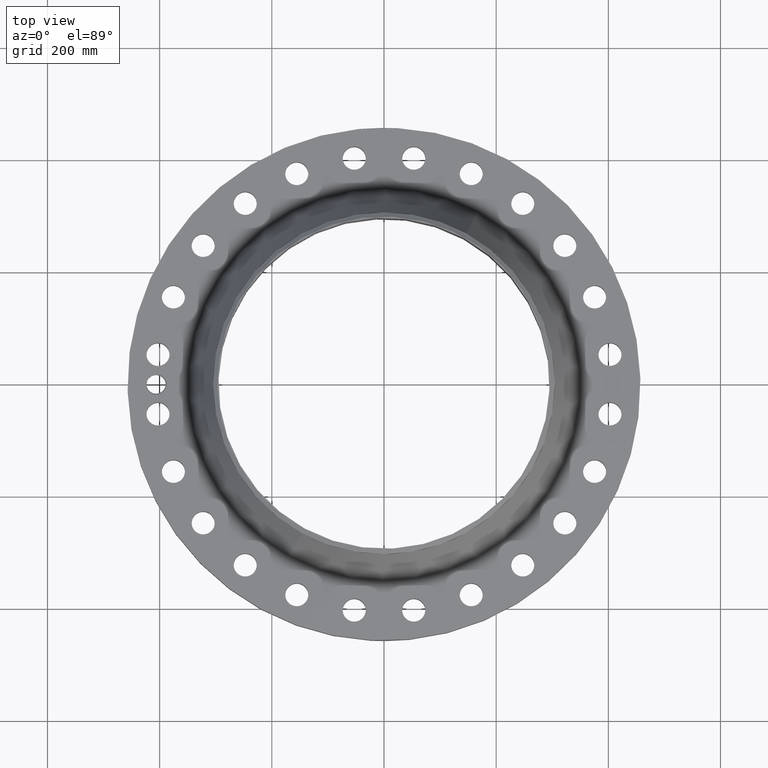
[diagram: clean part render]
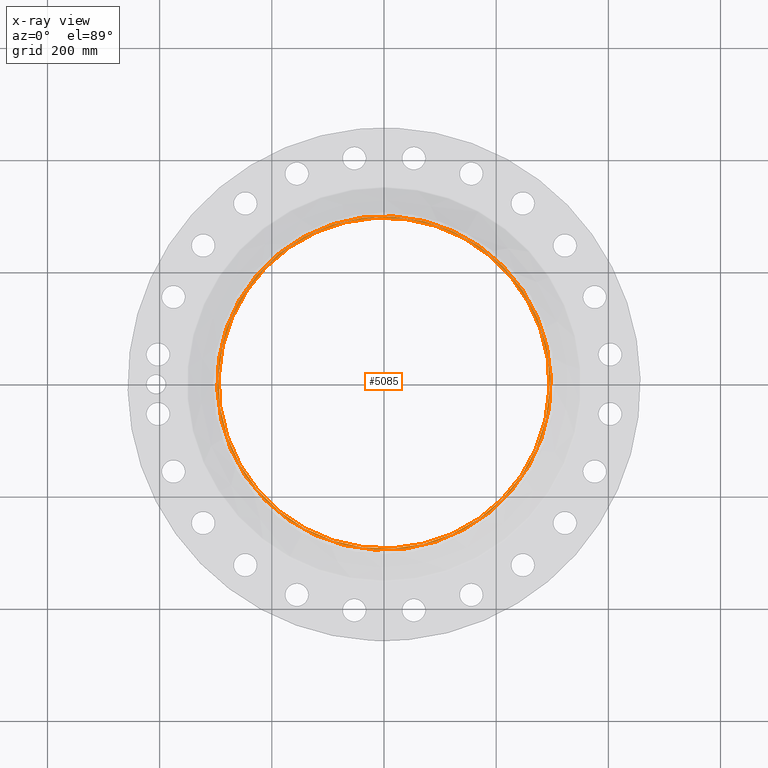
[diagram: x-ray — body ghosted, one internal face saturated and labeled with its STEP entity id]
A machine part, top view, then the same camera in x-ray: the body is ghosted and one INTERNAL B-rep face — a face not visible from any outside direction — is saturated and labeled: STEP entity #5085.
In plain terms, the highlighted planar face has unit normal (0, 0, -1).
Its self-contained STEP definition (entity closure, byte-faithful):
#3883=AXIS2_PLACEMENT_3D('Circle Axis2P3D',#3881,#3882,$) ;
#3951=AXIS2_PLACEMENT_3D('Circle Axis2P3D',#3949,#3950,$) ;
#5061=AXIS2_PLACEMENT_3D('Plane Axis2P3D',#5058,#5059,#5060) ;
#5065=AXIS2_PLACEMENT_3D('Circle Axis2P3D',#5063,#5064,$) ;
#5074=AXIS2_PLACEMENT_3D('Circle Axis2P3D',#5072,#5073,$) ;
#3881=CARTESIAN_POINT('Axis2P3D Location',(0.,0.,6.68000000003)) ;
#3885=CARTESIAN_POINT('Vertex',(5.5733218863,10.201897282,6.68000000003)) ;
#3887=CARTESIAN_POINT('Vertex',(-5.5733218863,-10.201897282,6.68000000003)) ;
#3949=CARTESIAN_POINT('Axis2P3D Location',(0.,0.,6.68000000003)) ;
#5058=CARTESIAN_POINT('Axis2P3D Location',(0.,12.,6.68000000003)) ;
#5063=CARTESIAN_POINT('Axis2P3D Location',(0.,0.,6.68000000003)) ;
#5067=CARTESIAN_POINT('Vertex',(5.61107192871,-10.2709982711,6.68000000003)) ;
#5069=CARTESIAN_POINT('Vertex',(-5.61107192871,10.2709982711,6.68000000003)) ;
#5072=CARTESIAN_POINT('Axis2P3D Location',(0.,0.,6.68000000003)) ;
#3882=DIRECTION('Axis2P3D Direction',(0.,0.,-0.0393700787402)) ;
#3950=DIRECTION('Axis2P3D Direction',(0.,0.,-0.0393700787402)) ;
#5059=DIRECTION('Axis2P3D Direction',(0.,0.,-0.0393700787402)) ;
#5060=DIRECTION('Axis2P3D XDirection',(0.0393700787402,0.,0.)) ;
#5064=DIRECTION('Axis2P3D Direction',(0.,0.,-0.0393700787402)) ;
#5073=DIRECTION('Axis2P3D Direction',(0.,0.,-0.0393700787402)) ;
#5078=ORIENTED_EDGE('',*,*,#5071,.T.) ;
#5079=ORIENTED_EDGE('',*,*,#5076,.T.) ;
#5082=ORIENTED_EDGE('',*,*,#3953,.T.) ;
#5083=ORIENTED_EDGE('',*,*,#3889,.T.) ;
#5084=FACE_BOUND('',#5081,.T.) ;
#5085=ADVANCED_FACE('PartBody',(#5080,#5084),#5062,.F.) ;
#3884=CIRCLE('generated circle',#3883,11.625) ;
#3952=CIRCLE('generated circle',#3951,11.625) ;
#5066=CIRCLE('generated circle',#5065,11.7037401575) ;
#5075=CIRCLE('generated circle',#5074,11.7037401575) ;
#3889=EDGE_CURVE('',#3886,#3888,#3884,.T.) ;
#3953=EDGE_CURVE('',#3888,#3886,#3952,.T.) ;
#5071=EDGE_CURVE('',#5068,#5070,#5066,.F.) ;
#5076=EDGE_CURVE('',#5070,#5068,#5075,.F.) ;
#5077=EDGE_LOOP('',(#5078,#5079)) ;
#5081=EDGE_LOOP('',(#5082,#5083)) ;
#5080=FACE_OUTER_BOUND('',#5077,.T.) ;
#5062=PLANE('',#5061) ;
#3886=VERTEX_POINT('',#3885) ;
#3888=VERTEX_POINT('',#3887) ;
#5068=VERTEX_POINT('',#5067) ;
#5070=VERTEX_POINT('',#5069) ;